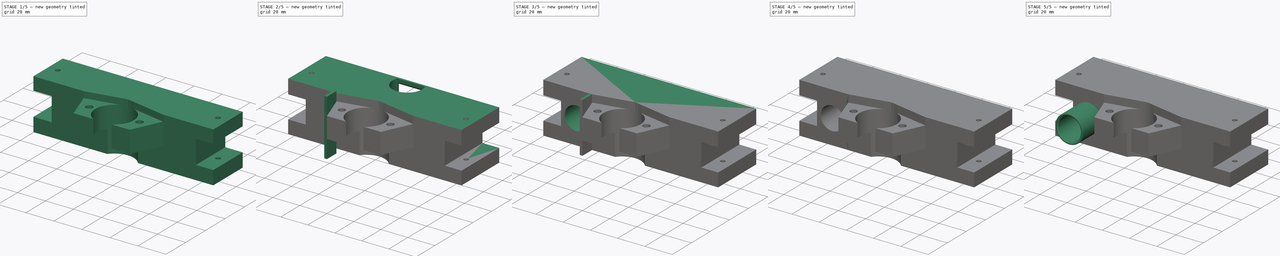
[diagram: build sequence overview — one tinted view per stage of 5, left to right]
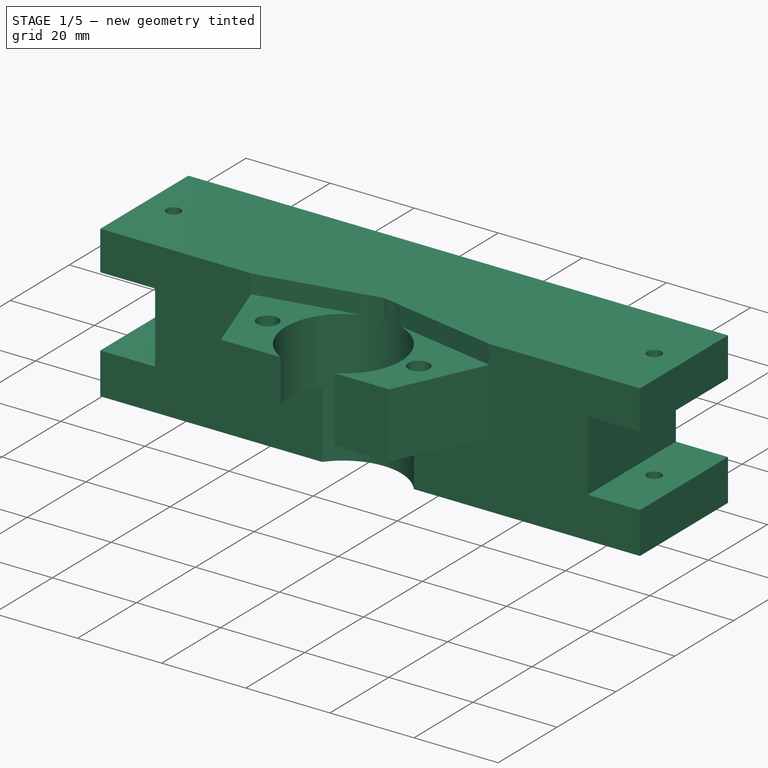
[diagram: stage 1 of 5 — iso view after this stage's code; geometry added in this stage tinted green]
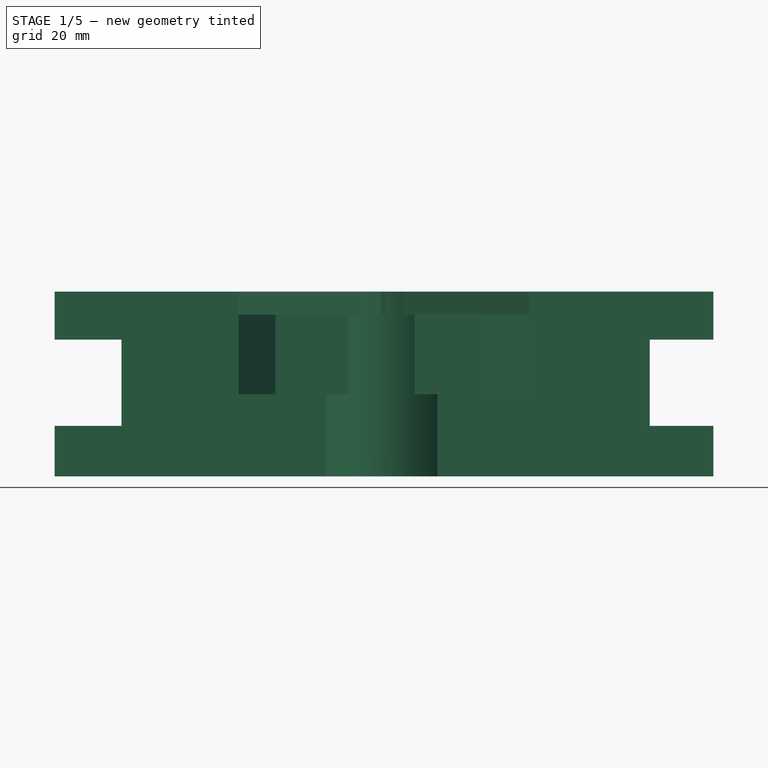
[diagram: stage 1 of 5 — front view after this stage's code; geometry added in this stage tinted green]
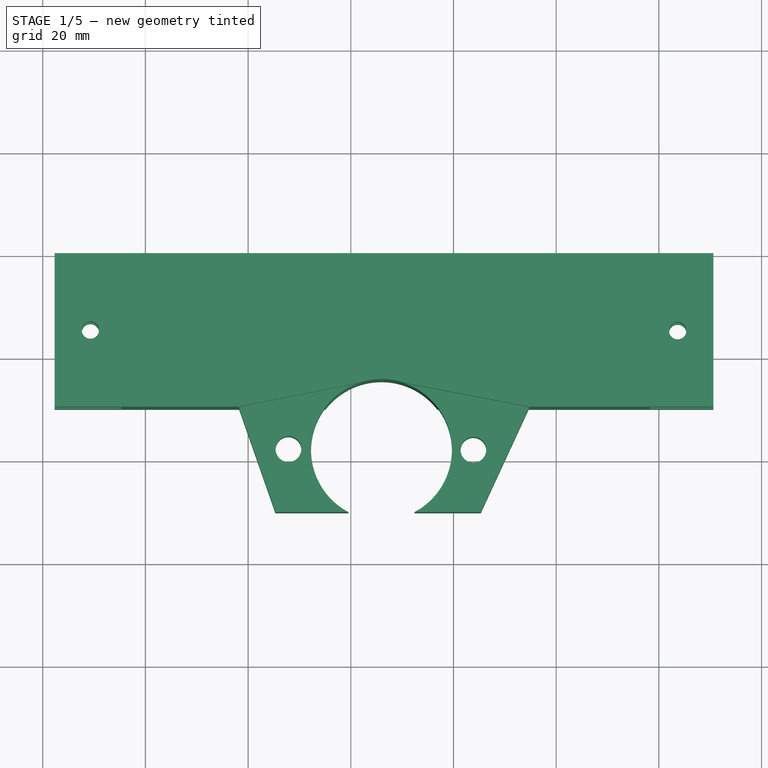
[diagram: stage 1 of 5 — top view after this stage's code; geometry added in this stage tinted green]
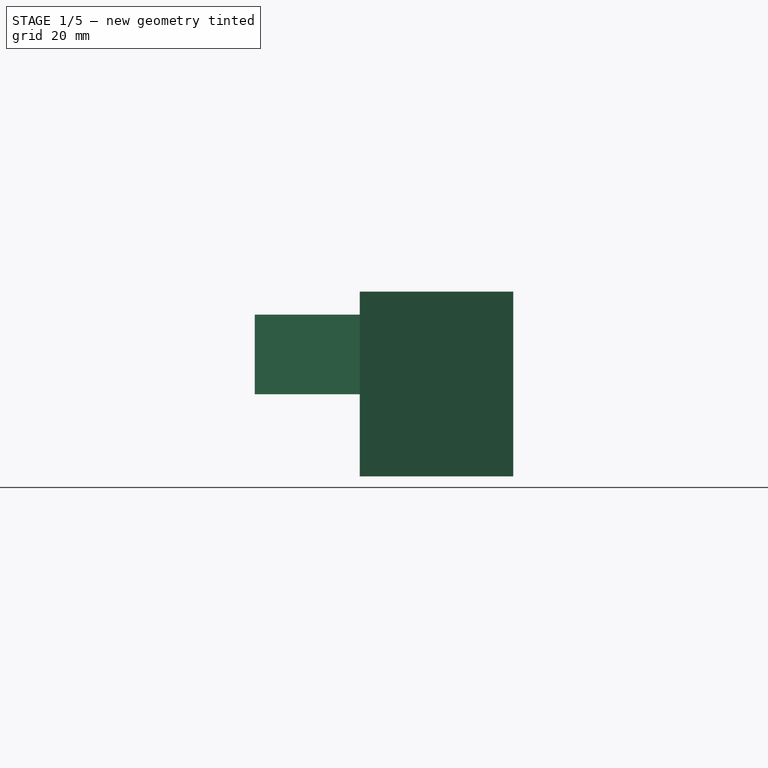
[diagram: stage 1 of 5 — right view after this stage's code; geometry added in this stage tinted green]
FCSTD DOCUMENT  (FreeCAD 2024.2R37179 (Git))
Label: Rear_upper_central_brace
License: All rights reserved
LicenseURL: http://en.wikipedia.org/wiki/All_rights_reserved
objects: PartDesign::Pocket×28, Sketcher::SketchObject×18, PartDesign::Pad×18, PartDesign::Chamfer×3, PartDesign::Fillet×1, PartDesign::Body×1
note: 119 computed .brp shape members not serialized (recipe doc carries the construction recipe); baked Part::Feature solids carry a one-line shape summary decoded from their .brp

FEATURE [Sketcher::SketchObject] Sketch
  AttachmentSupport = -> [XZ_Plane]
  FullyConstrained = false
  MapMode = 5
  Placement = pos=(0,0,0) rot=(1,0,0;1.5708rad)
  sketch-geometry (12):
    g0: LineSegment StartX=442.317 StartY=170.67 StartZ=0 EndX=570.617 EndY=170.67 EndZ=0
    g1: LineSegment StartX=570.617 StartY=170.67 StartZ=0 EndX=570.617 EndY=161.32 EndZ=0
    g2: LineSegment StartX=442.317 StartY=161.32 StartZ=0 EndX=442.317 EndY=170.67 EndZ=0
    g3: LineSegment StartX=455.34 StartY=161.32 StartZ=0 EndX=455.34 EndY=144.52 EndZ=0
    g4: LineSegment StartX=558.235 StartY=161.32 StartZ=0 EndX=558.235 EndY=144.52 EndZ=0
    g5: LineSegment StartX=570.617 StartY=161.32 StartZ=0 EndX=558.235 EndY=161.32 EndZ=0
    g6: LineSegment StartX=455.34 StartY=161.32 StartZ=0 EndX=442.317 EndY=161.32 EndZ=0
    g7: LineSegment StartX=558.235 StartY=144.52 StartZ=0 EndX=570.617 EndY=144.52 EndZ=0
    g8: LineSegment StartX=570.617 StartY=144.52 StartZ=0 EndX=570.617 EndY=134.67 EndZ=0
    g9: LineSegment StartX=570.617 StartY=134.67 StartZ=0 EndX=442.317 EndY=134.67 EndZ=0
    g10: LineSegment StartX=442.317 StartY=134.67 StartZ=0 EndX=442.317 EndY=144.52 EndZ=0
    g11: LineSegment StartX=442.317 StartY=144.52 StartZ=0 EndX=455.34 EndY=144.52 EndZ=0
  constraints (24):
    c: Coincident(g0,g1)
    c: Coincident(g2,g0)
    c: Horizontal(g0)
    c: Vertical(g1)
    c: Vertical(g2)
    c: Vertical(g3)
    c: Vertical(g4)
    c: Coincident(g5,g1)
    c: Coincident(g5,g4)
    c: Horizontal(g5)
    c: Coincident(g6,g3)
    c: Coincident(g6,g2)
    c: Horizontal(g6)
    c: Coincident(g7,g4)
    c: Horizontal(g7)
    c: Coincident(g8,g7)
    c: Vertical(g8)
    c: Coincident(g9,g8)
    c: Horizontal(g9)
    c: Coincident(g10,g9)
    c: Vertical(g10)
    c: Coincident(g11,g10)
    c: Coincident(g11,g3)
    c: Horizontal(g11)
FEATURE [PartDesign::Pad] Pad
  Direction = (0,-1,2e-16)
  Length = 29.89
  Length2 = 10
  Placement = pos=(0,0,0) rot=(1,0,0;1.5708rad)
  Profile = -> Sketch
  ReferenceAxis = -> Sketch [N_Axis]
  Suppressed = false
  Type = 0
FEATURE [Sketcher::SketchObject] Sketch001
  AttachmentSupport = -> [Pad]
  FullyConstrained = false
  MapMode = 5
  Placement = pos=(0,1.13e-13,170.67) rot=(0,0,1;3.14159rad)
  sketch-geometry (5):
    g0: Circle CenterX=-505.885 CenterY=38.2233 CenterZ=0 NormalX=0 NormalY=0 NormalZ=1 AngleXU=0 Radius=13.6635
    g1: Circle CenterX=-449.285 CenterY=14.9726 CenterZ=0 NormalX=0 NormalY=0 NormalZ=1 AngleXU=0 Radius=1.69029
    g2: Circle CenterX=-563.662 CenterY=15.0865 CenterZ=0 NormalX=0 NormalY=0 NormalZ=1 AngleXU=0 Radius=1.69361
    g3: Circle CenterX=-487.857 CenterY=38.0946 CenterZ=0 NormalX=0 NormalY=0 NormalZ=1 AngleXU=0 Radius=2.49617
    g4: Circle CenterX=-523.874 CenterY=38.2309 CenterZ=0 NormalX=0 NormalY=0 NormalZ=1 AngleXU=0 Radius=2.50068
FEATURE [PartDesign::Pocket] Pocket
  BaseFeature = -> Pad
  Direction = (0,-2e-16,-1)
  Length = 5
  Length2 = 5
  Placement = pos=(0,0,0) rot=(1,0,0;1.5708rad)
  Profile = -> Sketch001
  ReferenceAxis = -> Sketch001 [N_Axis]
  Suppressed = false
  Type = 1
FEATURE [Sketcher::SketchObject] Sketch002
  AttachmentSupport = -> [Pocket]
  FullyConstrained = false
  MapMode = 5
  Placement = pos=(0,-29.89,1.32e-14) rot=(1,0,0;1.5708rad)
  sketch-geometry (4):
    g0: LineSegment StartX=478.163 StartY=166.171 StartZ=0 EndX=534.767 EndY=166.171 EndZ=0
    g1: LineSegment StartX=534.767 StartY=166.171 StartZ=0 EndX=534.767 EndY=150.67 EndZ=0
    g2: LineSegment StartX=534.767 StartY=150.67 StartZ=0 EndX=478.163 EndY=150.67 EndZ=0
    g3: LineSegment StartX=478.163 StartY=150.67 StartZ=0 EndX=478.163 EndY=166.171 EndZ=0
  constraints (8):
    c: Coincident(g0,g1)
    c: Coincident(g1,g2)
    c: Coincident(g2,g3)
    c: Coincident(g3,g0)
    c: Horizontal(g0)
    c: Horizontal(g2)
    c: Vertical(g1)
    c: Vertical(g3)
FEATURE [PartDesign::Pad] Pad001
  BaseFeature = -> Pocket
  Direction = (0,-1,2e-16)
  Length = 23
  Length2 = 10
  Placement = pos=(0,0,0) rot=(1,0,0;1.5708rad)
  Profile = -> Sketch002
  ReferenceAxis = -> Sketch002 [N_Axis]
  Suppressed = false
  Type = 0
FEATURE [Sketcher::SketchObject] Sketch003
  AttachmentSupport = -> [Pad001]
  FullyConstrained = false
  MapMode = 5
  Placement = pos=(0,1.13e-13,170.67) rot=(0,0,1;3.14159rad)
  sketch-geometry (8):
    g0: LineSegment StartX=-534.768 StartY=29.8908 StartZ=0 EndX=-525.312 EndY=50.3505 EndZ=0
    g1: LineSegment StartX=-525.312 StartY=50.3505 StartZ=0 EndX=-512.236 EndY=50.3505 EndZ=0
    g2: LineSegment StartX=-499.457 StartY=50.3505 StartZ=0 EndX=-485.325 EndY=50.3505 EndZ=0
    g3: LineSegment StartX=-485.325 StartY=50.3505 StartZ=0 EndX=-478.151 EndY=29.859 EndZ=0
    g4: LineSegment StartX=-478.151 StartY=29.859 StartZ=0 EndX=-462.114 EndY=62.2343 EndZ=0
    g5: LineSegment StartX=-462.114 StartY=62.2343 StartZ=0 EndX=-547.049 EndY=62.2343 EndZ=0
    g6: LineSegment StartX=-547.049 StartY=62.2343 StartZ=0 EndX=-534.768 EndY=29.8908 EndZ=0
    g7: LineSegment StartX=-512.236 StartY=50.3505 StartZ=0 EndX=-499.457 EndY=50.3505 EndZ=0
  constraints (12):
    c: Coincident(g1,g0)
    c: Horizontal(g1)
    c: Horizontal(g2)
    c: Coincident(g3,g2)
    c: Coincident(g4,g3)
    c: Coincident(g5,g4)
    c: Horizontal(g5)
    c: Coincident(g6,g5)
    c: Coincident(g6,g0)
    c: Coincident(g7,g1)
    c: Coincident(g7,g2)
    c: Horizontal(g7)
FEATURE [PartDesign::Pocket] Pocket001
  BaseFeature = -> Pad001
  Direction = (0,-2e-16,-1)
  Length = 5
  Length2 = 5
  Placement = pos=(0,0,0) rot=(1,0,0;1.5708rad)
  Profile = -> Sketch003
  ReferenceAxis = -> Sketch003 [N_Axis]
  Suppressed = false
  Type = 1
FEATURE [Sketcher::SketchObject] Sketch004
  AttachmentSupport = -> [XY_Plane]
  FullyConstrained = false
  MapMode = 5
  sketch-geometry (1):
    g0: Circle CenterX=505.971 CenterY=-38.2404 CenterZ=0 NormalX=0 NormalY=0 NormalZ=1 AngleXU=0 Radius=13.7188
FEATURE [PartDesign::Pocket] Pocket002
  BaseFeature = -> Pocket001
  Direction = (0,0,-1)
  Length = 5
  Length2 = 5
  Placement = pos=(0,0,0) rot=(1,0,0;1.5708rad)
  Profile = -> Sketch004
  ReferenceAxis = -> Sketch004 [N_Axis]
  Reversed = true
  Suppressed = false
  Type = 1
FEATURE [Sketcher::SketchObject] Sketch005
  AttachmentSupport = -> [XY_Plane]
  FullyConstrained = false
  MapMode = 5
  sketch-geometry (2):
    g0: Circle CenterX=523.879 CenterY=-38.2275 CenterZ=0 NormalX=0 NormalY=0 NormalZ=1 AngleXU=0 Radius=2.49339
    g1: Circle CenterX=487.856 CenterY=-38.0924 CenterZ=0 NormalX=0 NormalY=0 NormalZ=1 AngleXU=0 Radius=2.49987
FEATURE [PartDesign::Pocket] Pocket003
  BaseFeature = -> Pocket002
  Direction = (0,0,-1)
  Length = 5
  Length2 = 5
  Placement = pos=(0,0,0) rot=(1,0,0;1.5708rad)
  Profile = -> Sketch005
  ReferenceAxis = -> Sketch005 [N_Axis]
  Reversed = true
  Suppressed = false
  Type = 1
FEATURE [Sketcher::SketchObject] Sketch006
  AttachmentSupport = -> [Pocket003]
  FullyConstrained = false
  MapMode = 5
  Placement = pos=(0,8.92e-14,134.67) rot=(1,0,0;3.14159rad)
  sketch-geometry (14):
    g0: LineSegment StartX=448.321 StartY=18.1884 StartZ=0 EndX=446 EndY=15.7553 EndZ=0
    g1: LineSegment StartX=446 StartY=15.7553 StartZ=0 EndX=446.946 EndY=12.5284 EndZ=0
    g2: LineSegment StartX=446.946 StartY=12.5284 StartZ=0 EndX=450.214 EndY=11.7344 EndZ=0
    g3: LineSegment StartX=450.214 StartY=11.7344 StartZ=0 EndX=452.535 EndY=14.1675 EndZ=0
    g4: LineSegment StartX=452.535 StartY=14.1675 StartZ=0 EndX=451.589 EndY=17.3945 EndZ=0
    g5: LineSegment StartX=451.589 StartY=17.3945 StartZ=0 EndX=448.321 EndY=18.1884 EndZ=0
    g6: Circle CenterX=449.267 CenterY=14.9614 CenterZ=0 NormalX=0 NormalY=0 NormalZ=1 AngleXU=0 Radius=3.36288
    g7: LineSegment StartX=562.545 StartY=18.2692 StartZ=0 EndX=560.363 EndY=15.7194 EndZ=0
    g8: LineSegment StartX=560.363 StartY=15.7194 StartZ=0 EndX=561.48 EndY=12.5544 EndZ=0
    g9: LineSegment StartX=561.48 StartY=12.5544 StartZ=0 EndX=564.779 EndY=11.9393 EndZ=0
    g10: LineSegment StartX=564.779 StartY=11.9393 StartZ=0 EndX=566.962 EndY=14.4891 EndZ=0
    g11: LineSegment StartX=566.962 StartY=14.4891 StartZ=0 EndX=565.845 EndY=17.6541 EndZ=0
    g12: LineSegment StartX=565.845 StartY=17.6541 StartZ=0 EndX=562.545 EndY=18.2692 EndZ=0
    g13: Circle CenterX=563.662 CenterY=15.1043 CenterZ=0 NormalX=0 NormalY=0 NormalZ=1 AngleXU=0 Radius=3.35625
  constraints (26):
    c: Coincident(g0,g1)
    c: Coincident(g1,g2)
    c: Coincident(g2,g3)
    c: Coincident(g3,g4)
    c: Coincident(g4,g5)
    c: Coincident(g5,g0)
    c: Equal(g0, g1-g5) x5
    c: PointOnObject(g0,g6)
    c: PointOnObject(g1,g6)
    c: PointOnObject(g2,g6)
    c: PointOnObject(g3,g6)
    c: PointOnObject(g4,g6)
    c: PointOnObject(g5,g6)
    c: Coincident(g7,g8)
    c: Coincident(g8,g9)
    c: Coincident(g9,g10)
    c: Coincident(g10,g11)
    c: Coincident(g11,g12)
    c: Coincident(g12,g7)
    c: Equal(g7, g8-g12) x5
    c: PointOnObject(g7,g13)
    c: PointOnObject(g8,g13)
    c: PointOnObject(g9,g13)
    c: PointOnObject(g10,g13)
    c: PointOnObject(g11,g13)
    c: PointOnObject(g12,g13)
FEATURE [PartDesign::Pocket] Pocket004
  BaseFeature = -> Pocket003
  Direction = (0,2e-16,1)
  Length = 3.3
  Length2 = 5
  Placement = pos=(0,0,0) rot=(1,0,0;1.5708rad)
  Profile = -> Sketch006
  ReferenceAxis = -> Sketch006 [N_Axis]
  Suppressed = false
  Type = 0
FEATURE [Sketcher::SketchObject] Sketch007
  AttachmentSupport = -> [Pocket004]
  FullyConstrained = false
  MapMode = 5
  Placement = pos=(0,9.98e-14,150.67) rot=(1,0,0;3.14159rad)
  sketch-geometry (14):
    g0: LineSegment StartX=487.917 StartY=42.8695 StartZ=0 EndX=483.715 EndY=40.4973 EndZ=0
    g1: LineSegment StartX=483.715 StartY=40.4973 StartZ=0 EndX=483.669 EndY=35.6724 EndZ=0
    g2: LineSegment StartX=483.669 StartY=35.6724 StartZ=0 EndX=487.824 EndY=33.2196 EndZ=0
    g3: LineSegment StartX=487.824 StartY=33.2196 StartZ=0 EndX=492.026 EndY=35.5918 EndZ=0
    g4: LineSegment StartX=492.026 StartY=35.5918 StartZ=0 EndX=492.072 EndY=40.4167 EndZ=0
    g5: LineSegment StartX=492.072 StartY=40.4167 StartZ=0 EndX=487.917 EndY=42.8695 EndZ=0
    g6: Circle CenterX=487.871 CenterY=38.0446 CenterZ=0 NormalX=0 NormalY=0 NormalZ=1 AngleXU=0 Radius=4.82518
    g7: LineSegment StartX=523.801 StartY=42.9111 StartZ=0 EndX=519.745 EndY=40.5243 EndZ=0
    g8: LineSegment StartX=519.745 StartY=40.5243 StartZ=0 EndX=519.784 EndY=35.8182 EndZ=0
    g9: LineSegment StartX=519.784 StartY=35.8182 StartZ=0 EndX=523.879 EndY=33.4987 EndZ=0
    g10: LineSegment StartX=523.879 StartY=33.4987 StartZ=0 EndX=527.935 EndY=35.8854 EndZ=0
    g11: LineSegment StartX=527.935 StartY=35.8854 StartZ=0 EndX=527.896 EndY=40.5916 EndZ=0
    g12: LineSegment StartX=527.896 StartY=40.5916 StartZ=0 EndX=523.801 EndY=42.9111 EndZ=0
    g13: Circle CenterX=523.84 CenterY=38.2049 CenterZ=0 NormalX=0 NormalY=0 NormalZ=1 AngleXU=0 Radius=4.70635
  constraints (26):
    c: Coincident(g0,g1)
    c: Coincident(g1,g2)
    c: Coincident(g2,g3)
    c: Coincident(g3,g4)
    c: Coincident(g4,g5)
    c: Coincident(g5,g0)
    c: Equal(g0, g1-g5) x5
    c: PointOnObject(g0,g6)
    c: PointOnObject(g1,g6)
    c: PointOnObject(g2,g6)
    c: PointOnObject(g3,g6)
    c: PointOnObject(g4,g6)
    c: PointOnObject(g5,g6)
    c: Coincident(g7,g8)
    c: Coincident(g8,g9)
    c: Coincident(g9,g10)
    c: Coincident(g10,g11)
    c: Coincident(g11,g12)
    c: Coincident(g12,g7)
    c: Equal(g7, g8-g12) x5
    c: PointOnObject(g7,g13)
    c: PointOnObject(g8,g13)
    c: PointOnObject(g9,g13)
    c: PointOnObject(g10,g13)
    c: PointOnObject(g11,g13)
    c: PointOnObject(g12,g13)
FEATURE [PartDesign::Pocket] Pocket005
  BaseFeature = -> Pocket004
  Direction = (0,2e-16,1)
  Length = 3.3
  Length2 = 5
  Placement = pos=(0,0,0) rot=(1,0,0;1.5708rad)
  Profile = -> Sketch007
  ReferenceAxis = -> Sketch007 [N_Axis]
  Suppressed = false
  Type = 0
FEATURE [Sketcher::SketchObject] Sketch008
  AttachmentSupport = -> [Pocket005]
  FullyConstrained = false
  MapMode = 5
  Placement = pos=(0,8.92e-14,134.67) rot=(1,0,0;3.14159rad)
  sketch-geometry (1):
    g0: Circle CenterX=505.228 CenterY=9.21818 CenterZ=0 NormalX=0 NormalY=0 NormalZ=1 AngleXU=0 Radius=6.09179
FEATURE [PartDesign::Pocket] Pocket006
  BaseFeature = -> Pocket005
  Direction = (0,2e-16,1)
  Length = 26.08
  Length2 = 5
  Placement = pos=(0,0,0) rot=(1,0,0;1.5708rad)
  Profile = -> Sketch008
  ReferenceAxis = -> Sketch008 [N_Axis]
  Suppressed = false
  Type = 0
FEATURE [Sketcher::SketchObject] Sketch009
  AttachmentSupport = -> [Pocket006]
  FullyConstrained = false
  MapMode = 5
  Placement = pos=(0,1.13e-13,170.67) rot=(0,0,1;3.14159rad)
  sketch-geometry (3):
    g0: LineSegment StartX=-478.15 StartY=29.8926 StartZ=0 EndX=-505.862 EndY=24.3773 EndZ=0
    g1: LineSegment StartX=-505.862 StartY=24.3773 StartZ=0 EndX=-534.777 EndY=29.8926 EndZ=0
    g2: LineSegment StartX=-534.777 StartY=29.8926 StartZ=0 EndX=-478.15 EndY=29.8926 EndZ=0
  constraints (4):
    c: Coincident(g1,g0)
    c: Coincident(g2,g1)
    c: Coincident(g2,g0)
    c: Horizontal(g2)
FEATURE [PartDesign::Pocket] Pocket007
  BaseFeature = -> Pocket006
  Direction = (0,-2e-16,-1)
  Length = 0
  Length2 = 5
  Placement = pos=(0,0,0) rot=(1,0,0;1.5708rad)
  Profile = -> Sketch009
  ReferenceAxis = -> Sketch009 [N_Axis]
  Suppressed = false
  Type = 3
  UpToFace = -> Pocket006 [Face39]
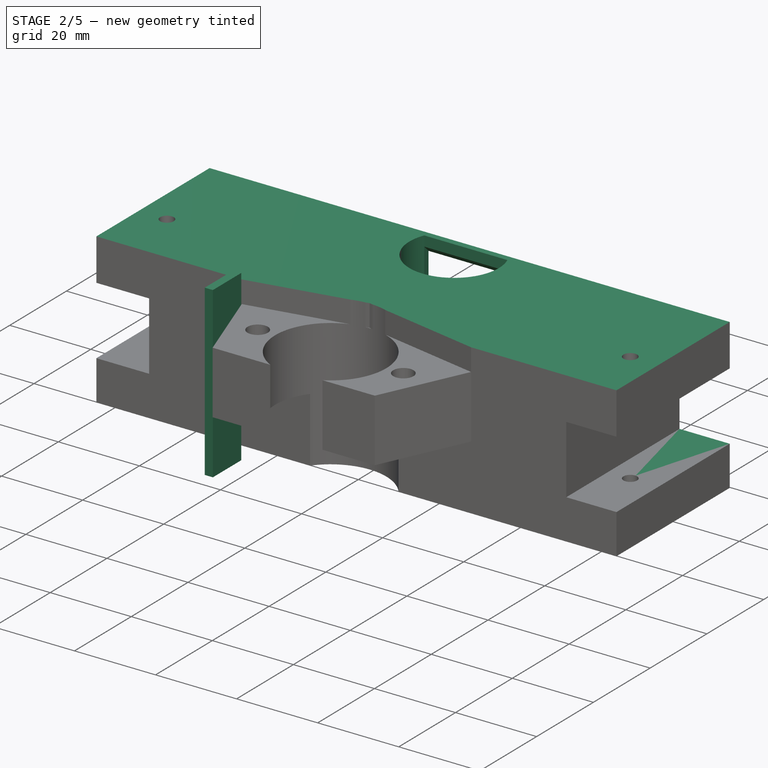
[diagram: stage 2 of 5 — iso view after this stage's code; geometry added in this stage tinted green]
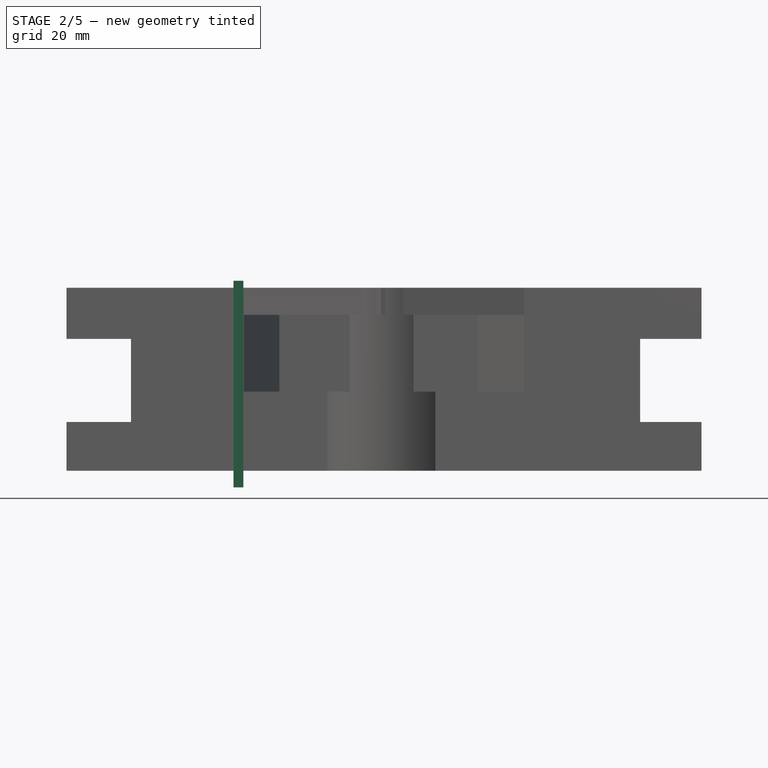
[diagram: stage 2 of 5 — front view after this stage's code; geometry added in this stage tinted green]
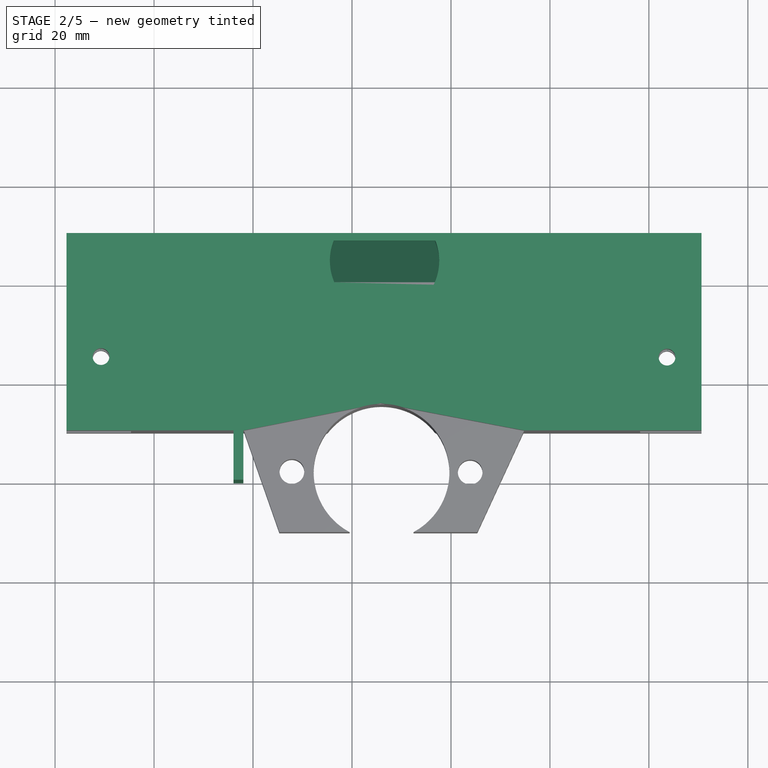
[diagram: stage 2 of 5 — top view after this stage's code; geometry added in this stage tinted green]
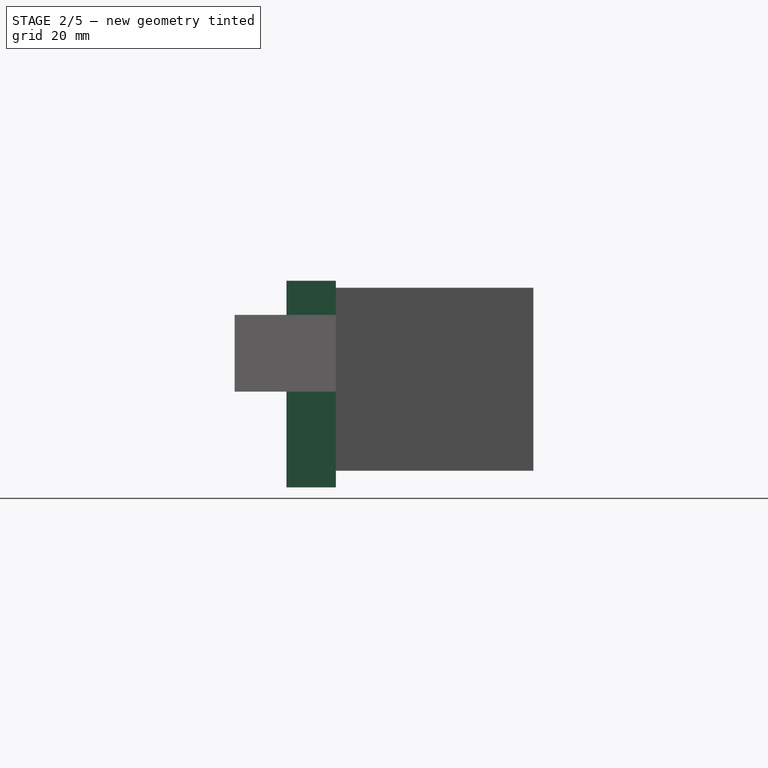
[diagram: stage 2 of 5 — right view after this stage's code; geometry added in this stage tinted green]
FEATURE [PartDesign::Pad] Pad002
  BaseFeature = -> Pocket007
  Direction = (0,1,-4e-16)
  Length = 10
  Length2 = 10
  Placement = pos=(0,0,0) rot=(1,0,0;1.5708rad)
  Profile = -> Pocket007 [Face3]
  Refine = true
  Suppressed = false
  Type = 0
FEATURE [Sketcher::SketchObject] Sketch010
  AttachmentOffset = pos=(0,45,0) rot=(0,0,1;0rad)
  AttachmentSupport = -> [Pad002]
  FullyConstrained = false
  MapMode = 5
  Placement = pos=(0,-45,170.67) rot=(0,0,1;3.14159rad)
  sketch-geometry (2):
    g0: ArcOfCircle CenterX=-506.579 CenterY=-49.3896 CenterZ=0 NormalX=0 NormalY=0 NormalZ=1 AngleXU=0 Radius=11.046 StartAngle=5.90291 EndAngle=9.80505
    g1: LineSegment StartX=-516.836 StartY=-53.4896 StartZ=0 EndX=-496.322 EndY=-53.4896 EndZ=0
  constraints (6):
    c: Coincident(g1,g0)
    c: Coincident(g1,g0)
    c: Horizontal(g1)
    c: DistanceX(g0) = -516.836
    c: DistanceY(g0) = -53.4896
    c: DistanceX(g0) = -496.322
FEATURE [PartDesign::Pocket] Pocket008
  BaseFeature = -> Pad002
  Direction = (0,-3.4e-15,-1)
  Length = 1
  Length2 = 5
  Placement = pos=(0,0,0) rot=(1,0,0;1.5708rad)
  Profile = -> Sketch010
  ReferenceAxis = -> Sketch010 [N_Axis]
  Refine = true
  Suppressed = false
  Type = 0
FEATURE [PartDesign::Pad] Pad003
  BaseFeature = -> Pocket008
  Direction = (0,3.5e-15,1)
  Length = 1
  Length2 = 10
  Placement = pos=(0,0,0) rot=(1,0,0;1.5708rad)
  Profile = -> Pocket008 [Face6]
  Suppressed = false
  Type = 0
FEATURE [PartDesign::Pocket] Pocket009
  BaseFeature = -> Pad003
  Direction = (0,-2.4e-15,-1)
  Length = 7
  Length2 = 5
  Placement = pos=(0,0,0) rot=(1,0,0;1.5708rad)
  Profile = -> Pad003 [Face94]
  Suppressed = false
  Type = 0
FEATURE [PartDesign::Pocket] Pocket010
  BaseFeature = -> Pocket009
  Direction = (0,1,-2.5e-15)
  Length = 5
  Length2 = 5
  Placement = pos=(0,0,0) rot=(1,0,0;1.5708rad)
  Profile = -> Pocket009 [Face95]
  Refine = true
  Suppressed = false
  Type = 0
FEATURE [PartDesign::Chamfer] Chamfer
  Angle = 45
  Base = -> Pocket010 [Edge200]
  BaseFeature = -> Pocket010
  ChamferType = 0
  FlipDirection = false
  Placement = pos=(0,0,0) rot=(1,0,0;1.5708rad)
  Refine = true
  Size = 9.8
  Size2 = 1
  SupportTransform = false
  Suppressed = false
  UseAllEdges = false
FEATURE [PartDesign::Pad] Pad004
  BaseFeature = -> Chamfer
  Direction = (0,-2.6e-15,-1)
  Length = 2
  Length2 = 10
  Placement = pos=(0,0,0) rot=(1,0,0;1.5708rad)
  Profile = -> Chamfer [Face4]
  Refine = true
  Suppressed = false
  Type = 0
FEATURE [PartDesign::Chamfer] Chamfer001
  Angle = 45
  Base = -> Pad004 [Edge89]
  BaseFeature = -> Pad004
  ChamferType = 0
  FlipDirection = false
  Placement = pos=(0,0,0) rot=(1,0,0;1.5708rad)
  Refine = true
  Size = 1.5
  Size2 = 1
  SupportTransform = false
  Suppressed = false
  UseAllEdges = false
FEATURE [Sketcher::SketchObject] Sketch011
  AttachmentSupport = -> [Chamfer001]
  FullyConstrained = false
  MapMode = 5
  Placement = pos=(0,10,-7.4e-15) rot=(-1,0,0;1.5708rad)
  sketch-geometry (14):
    g0: LineSegment StartX=474.86 StartY=-152.335 StartZ=0 EndX=473.168 EndY=-149.586 EndZ=0
    g1: LineSegment StartX=473.168 StartY=-149.586 StartZ=0 EndX=469.941 EndY=-149.677 EndZ=0
    g2: LineSegment StartX=469.941 StartY=-149.677 StartZ=0 EndX=468.407 EndY=-152.517 EndZ=0
    g3: LineSegment StartX=468.407 StartY=-152.517 StartZ=0 EndX=470.099 EndY=-155.266 EndZ=0
    g4: LineSegment StartX=470.099 StartY=-155.266 StartZ=0 EndX=473.326 EndY=-155.175 EndZ=0
    g5: LineSegment StartX=473.326 StartY=-155.175 StartZ=0 EndX=474.86 EndY=-152.335 EndZ=0
    g6: Circle CenterX=471.634 CenterY=-152.426 CenterZ=0 NormalX=0 NormalY=0 NormalZ=1 AngleXU=0 Radius=3.228
    g7: LineSegment StartX=545.508 StartY=-152.445 StartZ=0 EndX=543.911 EndY=-149.64 EndZ=0
    g8: LineSegment StartX=543.911 StartY=-149.64 StartZ=0 EndX=540.683 EndY=-149.62 EndZ=0
    g9: LineSegment StartX=540.683 StartY=-149.62 StartZ=0 EndX=539.052 EndY=-152.406 EndZ=0
    g10: LineSegment StartX=539.052 StartY=-152.406 StartZ=0 EndX=540.649 EndY=-155.211 EndZ=0
    g11: LineSegment StartX=540.649 StartY=-155.211 StartZ=0 EndX=543.877 EndY=-155.231 EndZ=0
    g12: LineSegment StartX=543.877 StartY=-155.231 StartZ=0 EndX=545.508 EndY=-152.445 EndZ=0
    g13: Circle CenterX=542.28 CenterY=-152.426 CenterZ=0 NormalX=0 NormalY=0 NormalZ=1 AngleXU=0 Radius=3.228
  constraints (30):
    c: Coincident(g0,g1)
    c: Coincident(g1,g2)
    c: Coincident(g2,g3)
    c: Coincident(g3,g4)
    c: Coincident(g4,g5)
    c: Coincident(g5,g0)
    c: Equal(g0, g1-g5) x5
    c: PointOnObject(g0,g6)
    c: PointOnObject(g1,g6)
    c: PointOnObject(g2,g6)
    c: PointOnObject(g3,g6)
    c: PointOnObject(g4,g6)
    c: PointOnObject(g5,g6)
    c: Radius(g6) = 3.228
    c: Coincident(g7,g8)
    c: Coincident(g8,g9)
    c: Coincident(g9,g10)
    c: Coincident(g10,g11)
    c: Coincident(g11,g12)
    c: Coincident(g12,g7)
    c: Equal(g7, g8-g12) x5
    c: PointOnObject(g7,g13)
    c: PointOnObject(g8,g13)
    c: PointOnObject(g9,g13)
    c: PointOnObject(g10,g13)
    c: PointOnObject(g11,g13)
    c: PointOnObject(g12,g13)
    c: Radius(g13) = 3.228
    c: DistanceX(g6,g13) = 70.646
    c: Horizontal(g13,g6)
FEATURE [PartDesign::Pocket] Pocket011
  BaseFeature = -> Chamfer001
  Direction = (0,-1,-2e-16)
  Length = 5
  Length2 = 5
  Placement = pos=(0,0,0) rot=(1,0,0;1.5708rad)
  Profile = -> Sketch011
  ReferenceAxis = -> Sketch011 [N_Axis]
  Refine = true
  Suppressed = false
  Type = 0
FEATURE [Sketcher::SketchObject] Sketch012
  AttachmentSupport = -> [Pocket011]
  FullyConstrained = false
  MapMode = 5
  Placement = pos=(0,-29.89,2.01e-14) rot=(1,0,0;1.5708rad)
  sketch-geometry (4):
    g0: LineSegment StartX=478.058 StartY=173.085 StartZ=0 EndX=476.058 EndY=173.085 EndZ=0
    g1: LineSegment StartX=476.058 StartY=173.085 StartZ=0 EndX=476.058 EndY=131.33 EndZ=0
    g2: LineSegment StartX=476.058 StartY=131.33 StartZ=0 EndX=478.058 EndY=131.33 EndZ=0
    g3: LineSegment StartX=478.058 StartY=131.33 StartZ=0 EndX=478.058 EndY=173.085 EndZ=0
  constraints (9):
    c: Coincident(g0,g1)
    c: Coincident(g1,g2)
    c: Coincident(g2,g3)
    c: Coincident(g3,g0)
    c: Horizontal(g0)
    c: Horizontal(g2)
    c: Vertical(g1)
    c: Vertical(g3)
    c: DistanceX(g0,g0) = 2
FEATURE [PartDesign::Pad] Pad005
  BaseFeature = -> Pocket011
  Direction = (0,-1,2e-16)
  Length = 10
  Length2 = 10
  Placement = pos=(0,0,0) rot=(1,0,0;1.5708rad)
  Profile = -> Sketch012
  ReferenceAxis = -> Sketch012 [N_Axis]
  Refine = true
  Suppressed = false
  Type = 0
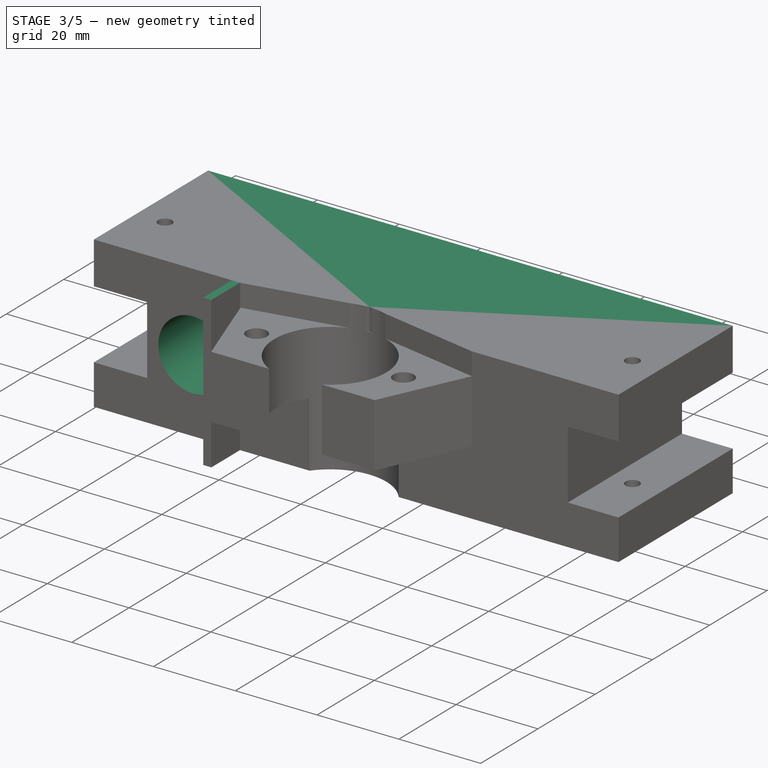
[diagram: stage 3 of 5 — iso view after this stage's code; geometry added in this stage tinted green]
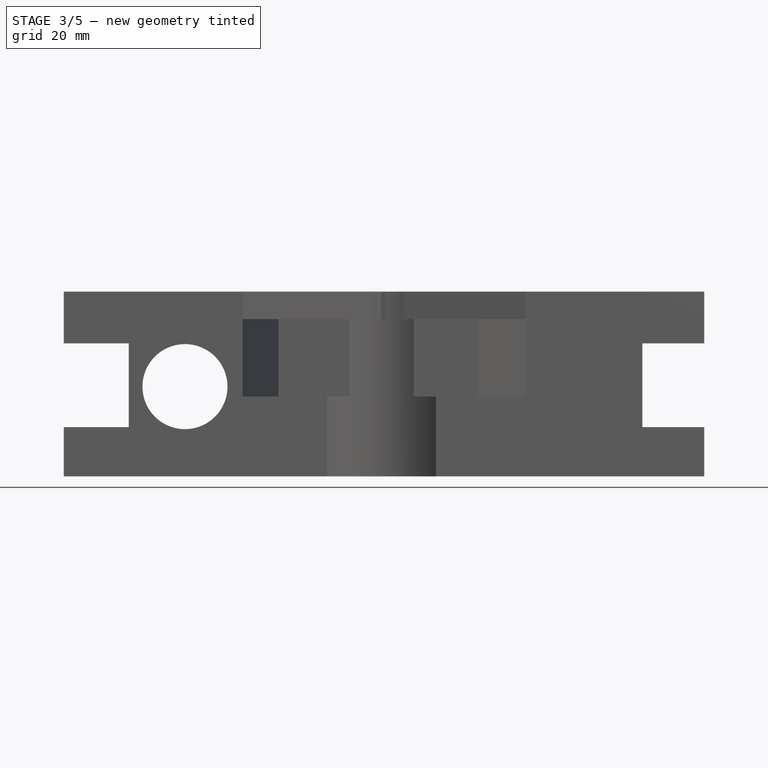
[diagram: stage 3 of 5 — front view after this stage's code; geometry added in this stage tinted green]
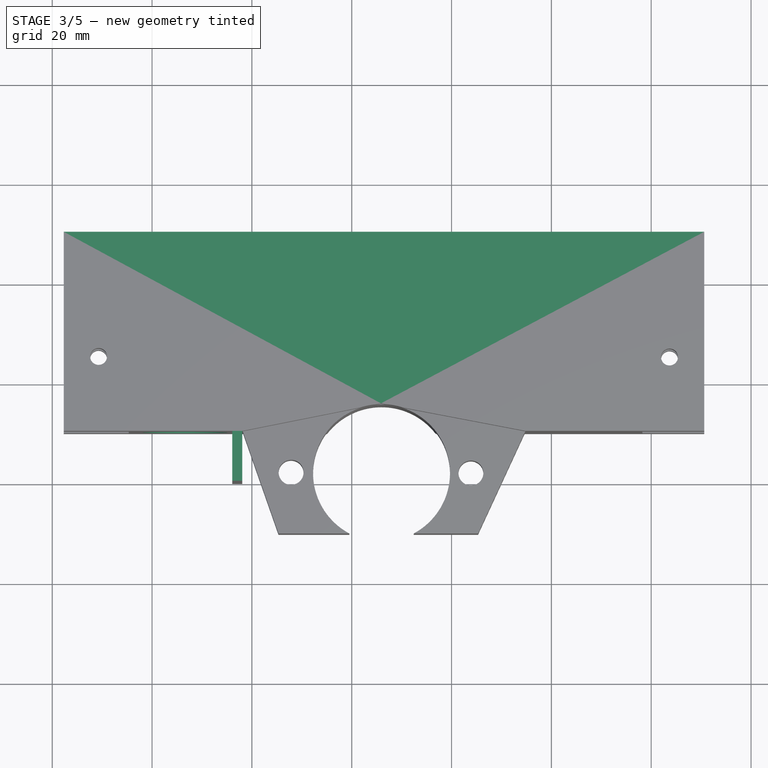
[diagram: stage 3 of 5 — top view after this stage's code; geometry added in this stage tinted green]
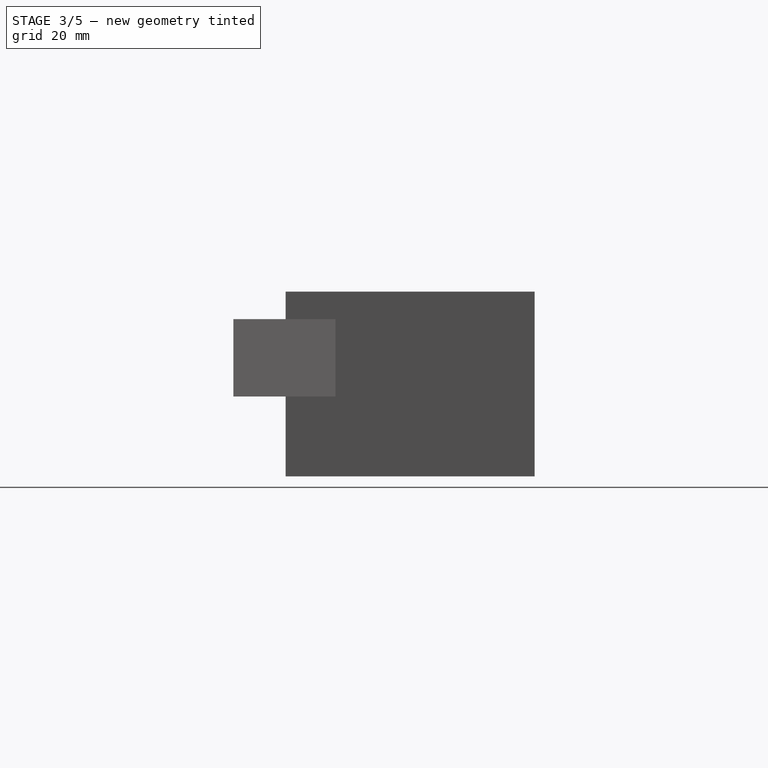
[diagram: stage 3 of 5 — right view after this stage's code; geometry added in this stage tinted green]
FEATURE [PartDesign::Pocket] Pocket012
  BaseFeature = -> Pad005
  Direction = (0,-1,4e-16)
  Length = 15
  Length2 = 5
  Placement = pos=(0,0,0) rot=(1,0,0;1.5708rad)
  Profile = -> Pad005 [Face50]
  Refine = true
  Suppressed = false
  Type = 0
FEATURE [PartDesign::Pocket] Pocket013
  BaseFeature = -> Pocket012
  Direction = (0,-1,5e-16)
  Length = 13
  Length2 = 5
  Placement = pos=(0,0,0) rot=(1,0,0;1.5708rad)
  Profile = -> Pocket012 [Face52]
  Refine = true
  Suppressed = false
  Type = 0
FEATURE [PartDesign::Pad] Pad006
  BaseFeature = -> Pocket013
  Direction = (0,-0.707107,-0.707107)
  Length = 7
  Length2 = 10
  Placement = pos=(0,0,0) rot=(1,0,0;1.5708rad)
  Profile = -> Pocket013 [Face94]
  Refine = true
  Suppressed = false
  Type = 3
  UpToFace = -> Pocket013 [Face59]
FEATURE [PartDesign::Pad] Pad007
  BaseFeature = -> Pad006
  Direction = (-1,0,0)
  Length = 22
  Length2 = 10
  Placement = pos=(0,0,0) rot=(1,0,0;1.5708rad)
  Profile = -> Pad006 [Face59]
  Refine = true
  Suppressed = false
  Type = 0
FEATURE [Sketcher::SketchObject] Sketch013
  AttachmentSupport = -> [Pad007]
  FullyConstrained = false
  MapMode = 5
  Placement = pos=(0,5.262e-13,171.67) rot=(0,0,1;3.14159rad)
  sketch-geometry (4):
    g0: LineSegment StartX=-522.936 StartY=-0.23393 StartZ=0 EndX=-522.936 EndY=-15.3094 EndZ=0
    g1: LineSegment StartX=-522.936 StartY=-15.3094 StartZ=0 EndX=-489.406 EndY=-15.3094 EndZ=0
    g2: LineSegment StartX=-489.406 StartY=-15.3094 StartZ=0 EndX=-489.406 EndY=-0.23393 EndZ=0
    g3: LineSegment StartX=-489.406 StartY=-0.23393 StartZ=0 EndX=-522.936 EndY=-0.23393 EndZ=0
  constraints (8):
    c: Coincident(g0,g1)
    c: Coincident(g1,g2)
    c: Coincident(g2,g3)
    c: Coincident(g3,g0)
    c: Vertical(g0)
    c: Vertical(g2)
    c: Horizontal(g1)
    c: Horizontal(g3)
FEATURE [PartDesign::Pad] Pad008
  BaseFeature = -> Pad007
  Direction = (0,3.1e-15,1)
  Length = 10
  Length2 = 10
  Placement = pos=(0,0,0) rot=(1,0,0;1.5708rad)
  Profile = -> Sketch013
  ReferenceAxis = -> Sketch013 [N_Axis]
  Refine = true
  Reversed = true
  Suppressed = false
  Type = 0
FEATURE [PartDesign::Pad] Pad009
  BaseFeature = -> Pad008
  Direction = (0,-1,3.2e-15)
  Length = 10
  Length2 = 10
  Placement = pos=(0,0,0) rot=(1,0,0;1.5708rad)
  Profile = -> Pad008 [Face97]
  Refine = true
  Suppressed = false
  Type = 0
FEATURE [PartDesign::Pocket] Pocket014
  BaseFeature = -> Pad009
  Direction = (0,4e-15,1)
  Length = 14
  Length2 = 5
  Placement = pos=(0,0,0) rot=(1,0,0;1.5708rad)
  Profile = -> Pad009 [Face53]
  Refine = true
  Suppressed = false
  Type = 0
FEATURE [Sketcher::SketchObject] Sketch014
  AttachmentSupport = -> [Pocket014]
  FullyConstrained = false
  MapMode = 5
  Placement = pos=(0,5.677e-13,171.67) rot=(0,0,1;3.14159rad)
  sketch-geometry (4):
    g0: LineSegment StartX=-523.05 StartY=-0.475748 StartZ=0 EndX=-523.05 EndY=-18.073 EndZ=0
    g1: LineSegment StartX=-523.05 StartY=-18.073 StartZ=0 EndX=-488.291 EndY=-18.073 EndZ=0
    g2: LineSegment StartX=-488.291 StartY=-18.073 StartZ=0 EndX=-488.291 EndY=-0.475748 EndZ=0
    g3: LineSegment StartX=-488.291 StartY=-0.475748 StartZ=0 EndX=-523.05 EndY=-0.475748 EndZ=0
  constraints (8):
    c: Coincident(g0,g1)
    c: Coincident(g1,g2)
    c: Coincident(g2,g3)
    c: Coincident(g3,g0)
    c: Vertical(g0)
    c: Vertical(g2)
    c: Horizontal(g1)
    c: Horizontal(g3)
FEATURE [PartDesign::Pad] Pad010
  BaseFeature = -> Pocket014
  Direction = (0,3.3e-15,1)
  Length = 62
  Length2 = 10
  Placement = pos=(0,0,0) rot=(1,0,0;1.5708rad)
  Profile = -> Sketch014
  ReferenceAxis = -> Sketch014 [N_Axis]
  Refine = true
  Reversed = true
  Suppressed = false
  Type = 0
FEATURE [PartDesign::Pocket] Pocket015
  BaseFeature = -> Pad010
  Direction = (1,0,0)
  Length = 39
  Length2 = 5
  Placement = pos=(0,0,0) rot=(1,0,0;1.5708rad)
  Profile = -> Pad010 [Face12]
  Refine = true
  Suppressed = false
  Type = 0
FEATURE [Sketcher::SketchObject] Sketch015
  AttachmentSupport = -> [Pocket015]
  FullyConstrained = false
  MapMode = 5
  Placement = pos=(2.03e-14,-29.89,5.66e-14) rot=(1,0,0;1.5708rad)
  sketch-geometry (1):
    g0: Circle CenterX=466.593 CenterY=152.644 CenterZ=0 NormalX=0 NormalY=0 NormalZ=1 AngleXU=0 Radius=8.51602
FEATURE [PartDesign::Pocket] Pocket016
  BaseFeature = -> Pocket015
  Direction = (0,1,-2.1e-15)
  Length = 131
  Length2 = 5
  Placement = pos=(0,0,0) rot=(1,0,0;1.5708rad)
  Profile = -> Sketch015
  ReferenceAxis = -> Sketch015 [N_Axis]
  Refine = true
  Suppressed = false
  Type = 0
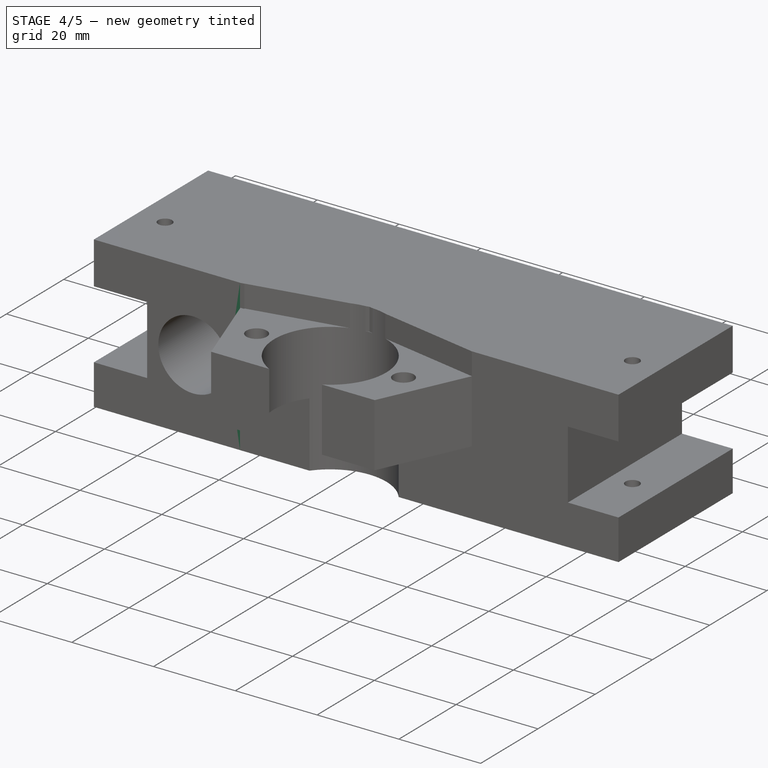
[diagram: stage 4 of 5 — iso view after this stage's code; geometry added in this stage tinted green]
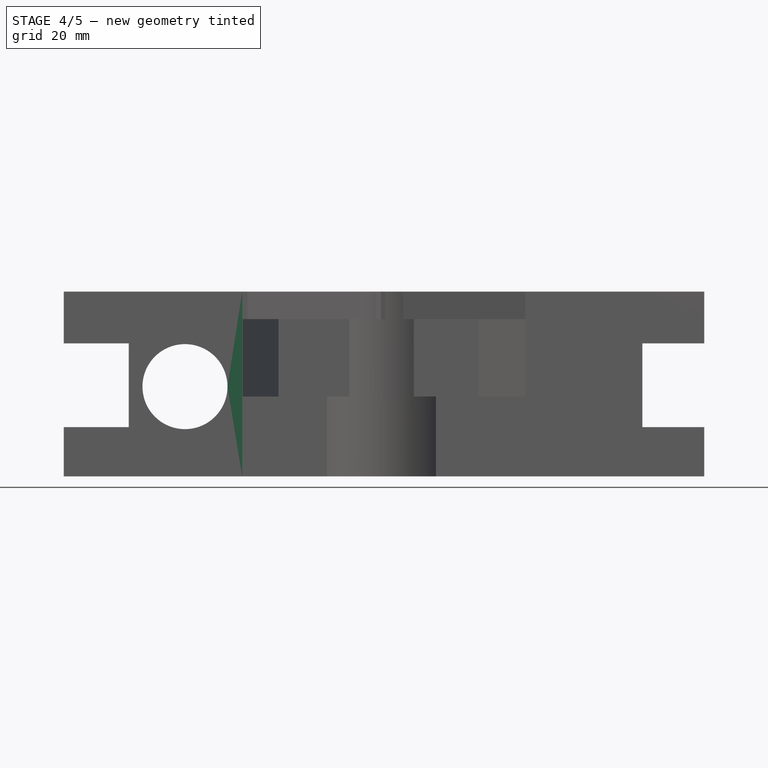
[diagram: stage 4 of 5 — front view after this stage's code; geometry added in this stage tinted green]
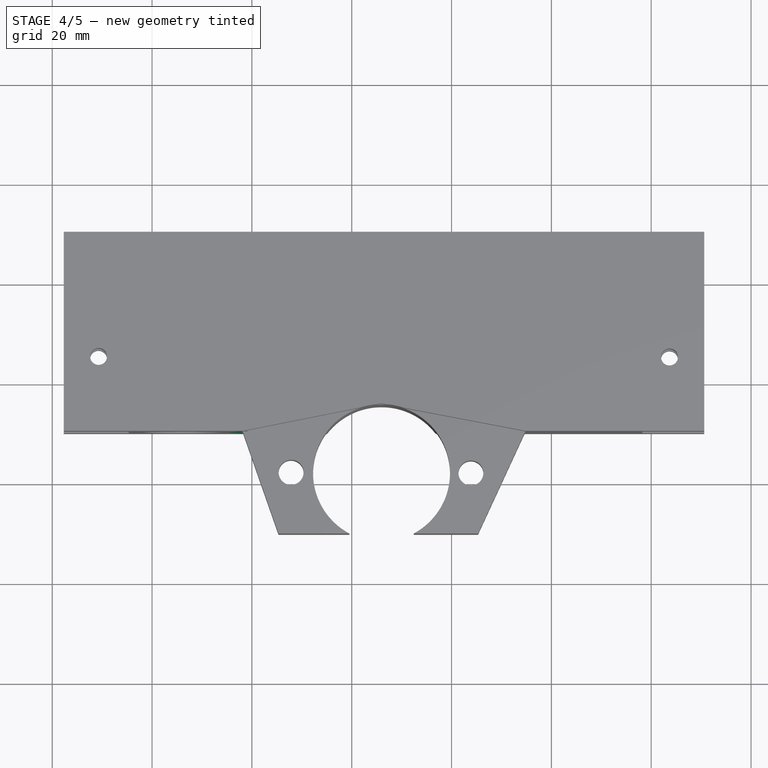
[diagram: stage 4 of 5 — top view after this stage's code; geometry added in this stage tinted green]
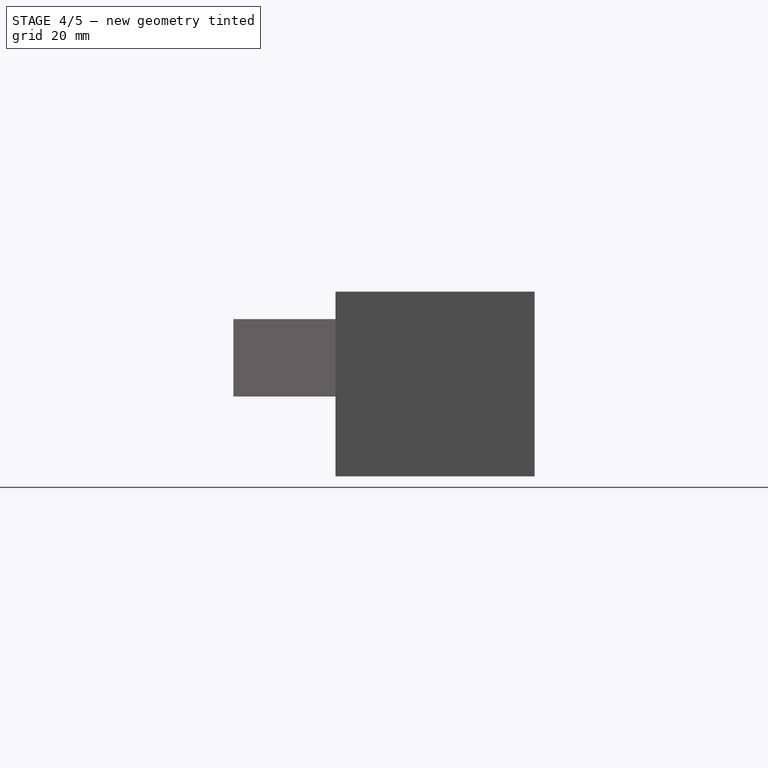
[diagram: stage 4 of 5 — right view after this stage's code; geometry added in this stage tinted green]
FEATURE [Sketcher::SketchObject] Sketch016
  AttachmentSupport = -> [Pocket016]
  FullyConstrained = false
  MapMode = 5
  Placement = pos=(0,10,-1.7e-14) rot=(-1,0,0;1.5708rad)
  sketch-geometry (4):
    g0: LineSegment StartX=459.963 StartY=-150.422 StartZ=0 EndX=450.561 EndY=-150.422 EndZ=0
    g1: LineSegment StartX=450.561 StartY=-150.422 StartZ=0 EndX=450.561 EndY=-155.969 EndZ=0
    g2: LineSegment StartX=450.561 StartY=-155.969 StartZ=0 EndX=459.963 EndY=-155.969 EndZ=0
    g3: LineSegment StartX=459.963 StartY=-155.969 StartZ=0 EndX=459.963 EndY=-150.422 EndZ=0
  constraints (8):
    c: Coincident(g0,g1)
    c: Coincident(g1,g2)
    c: Coincident(g2,g3)
    c: Coincident(g3,g0)
    c: Horizontal(g0)
    c: Horizontal(g2)
    c: Vertical(g1)
    c: Vertical(g3)
FEATURE [PartDesign::Pocket] Pocket017
  BaseFeature = -> Pocket016
  Direction = (0,-1,1.8e-15)
  Length = 5
  Length2 = 5
  Placement = pos=(0,0,0) rot=(1,0,0;1.5708rad)
  Profile = -> Sketch016
  ReferenceAxis = -> Sketch016 [N_Axis]
  Refine = true
  Suppressed = false
  Type = 0
FEATURE [PartDesign::Pocket] Pocket018
  BaseFeature = -> Pocket017
  Direction = (0,-1.9e-15,-1)
  Length = 1
  Length2 = 5
  Placement = pos=(0,0,0) rot=(1,0,0;1.5708rad)
  Profile = -> Pocket017 [Face55]
  Refine = true
  Suppressed = false
  Type = 0
FEATURE [PartDesign::Pocket] Pocket019
  BaseFeature = -> Pocket018
  Direction = (1,0,0)
  Length = 5
  Length2 = 5
  Placement = pos=(0,0,0) rot=(1,0,0;1.5708rad)
  Profile = -> Pocket018 [Face55]
  Refine = true
  Suppressed = false
  Type = 0
FEATURE [PartDesign::Pocket] Pocket020
  BaseFeature = -> Pocket019
  Direction = (0,2.1e-15,1)
  Length = 0.5
  Length2 = 5
  Placement = pos=(0,0,0) rot=(1,0,0;1.5708rad)
  Profile = -> Pocket019 [Face54]
  Refine = true
  Suppressed = false
  Type = 0
FEATURE [PartDesign::Pocket] Pocket021
  BaseFeature = -> Pocket020
  Direction = (1,0,0)
  Length = 5
  Length2 = 5
  Placement = pos=(0,0,0) rot=(1,0,0;1.5708rad)
  Profile = -> Pocket020 [Face55]
  Refine = true
  Suppressed = false
  Type = 0
FEATURE [PartDesign::Pocket] Pocket022
  BaseFeature = -> Pocket021
  Direction = (-6e-16,-1,2.4e-15)
  Length = 3
  Length2 = 5
  Placement = pos=(0,0,0) rot=(1,0,0;1.5708rad)
  Profile = -> Pocket021 [Face88]
  Refine = true
  Suppressed = false
  Type = 0
FEATURE [PartDesign::Pocket] Pocket023
  BaseFeature = -> Pocket022
  Direction = (0,1,-2.1e-15)
  Length = 0
  Length2 = 5
  Placement = pos=(0,0,0) rot=(1,0,0;1.5708rad)
  Profile = -> Pocket022 [Face17]
  Refine = true
  Suppressed = false
  Type = 3
  UpToFace = -> Pocket022 [Face19]
FEATURE [PartDesign::Pad] Pad011
  BaseFeature = -> Pocket023
  Direction = (7e-16,-1,2.8e-15)
  Length = 0.01
  Length2 = 10
  Placement = pos=(0,0,0) rot=(1,0,0;1.5708rad)
  Profile = -> Pocket023 [Face13]
  Refine = true
  Suppressed = false
  Type = 0
FEATURE [PartDesign::Pad] Pad012
  BaseFeature = -> Pad011
  Direction = (1,7e-16,0)
  Length = 1
  Length2 = 10
  Placement = pos=(0,0,0) rot=(1,0,0;1.5708rad)
  Profile = -> Pad011 [Face43]
  Refine = true
  Suppressed = false
  Type = 0
FEATURE [PartDesign::Pad] Pad013
  BaseFeature = -> Pad012
  Direction = (-7e-16,1,-3.3e-15)
  Length = 10
  Length2 = 10
  Placement = pos=(0,0,0) rot=(1,0,0;1.5708rad)
  Profile = -> Pad012 [Face87]
  Refine = true
  Suppressed = false
  Type = 0
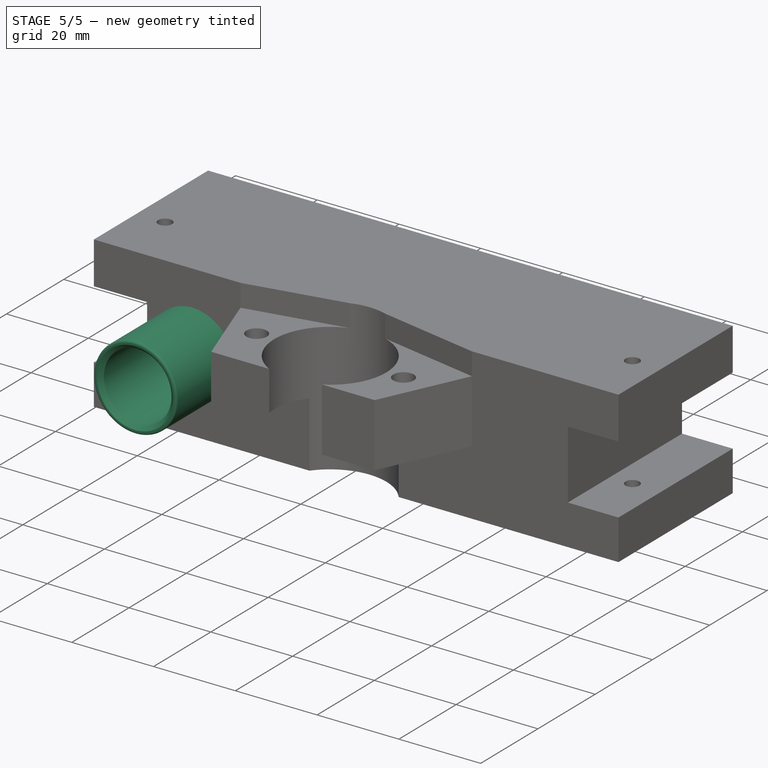
[diagram: stage 5 of 5 — iso view after this stage's code; geometry added in this stage tinted green]
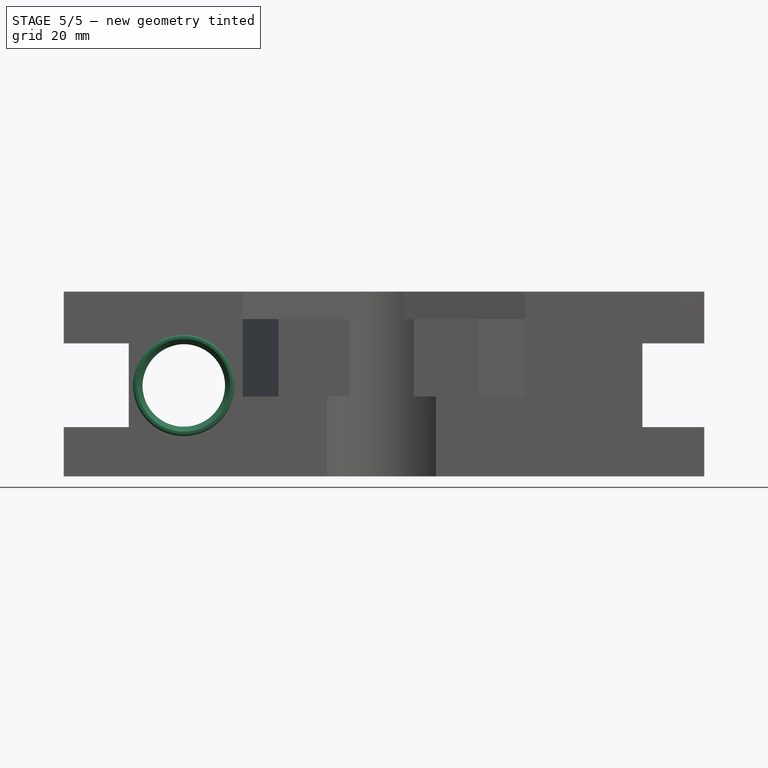
[diagram: stage 5 of 5 — front view after this stage's code; geometry added in this stage tinted green]
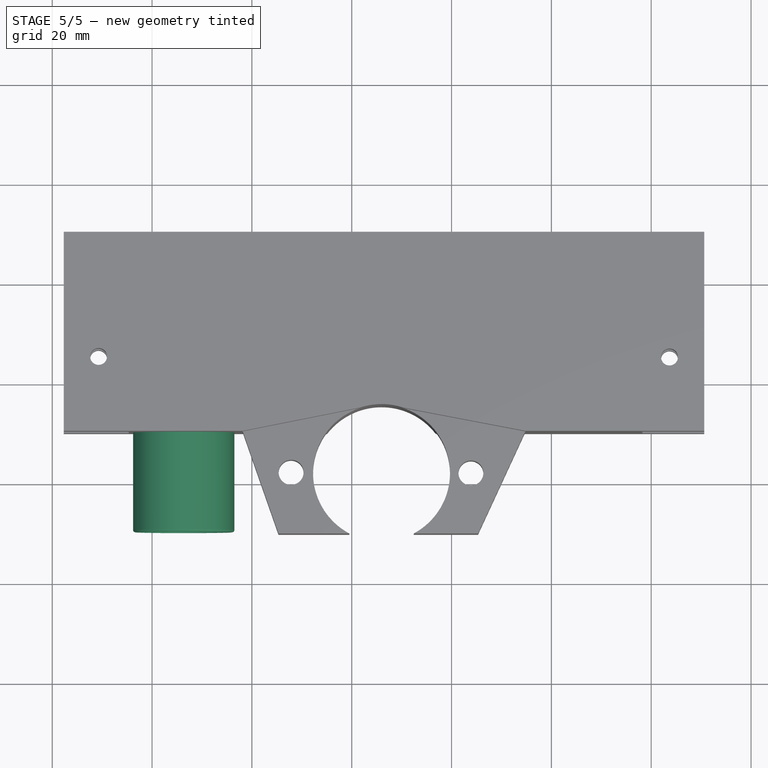
[diagram: stage 5 of 5 — top view after this stage's code; geometry added in this stage tinted green]
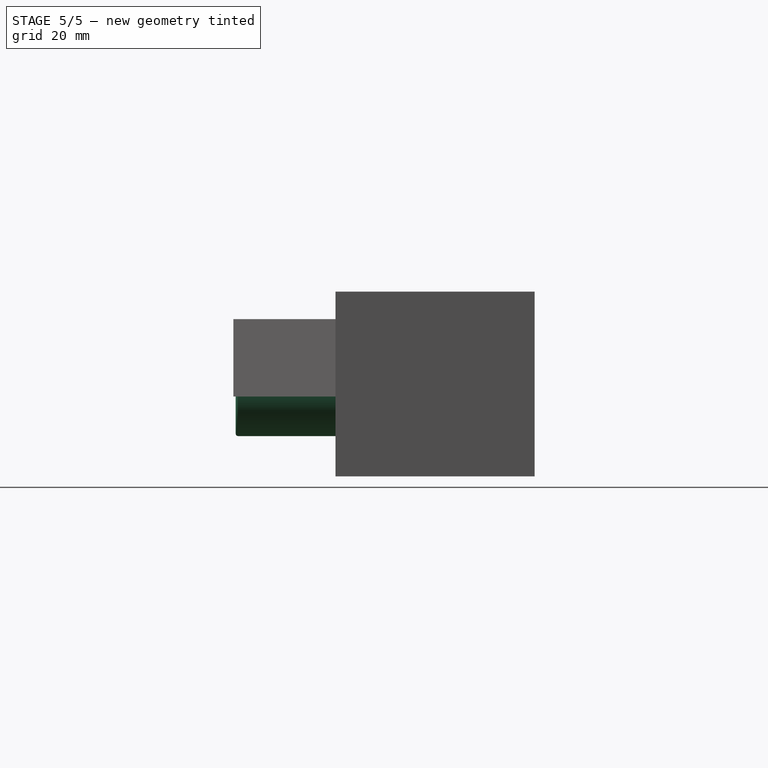
[diagram: stage 5 of 5 — right view after this stage's code; geometry added in this stage tinted green]
FEATURE [PartDesign::Pocket] Pocket024
  BaseFeature = -> Pad013
  Direction = (-8.61e-14,1,-3.2e-15)
  Length = 0
  Length2 = 5
  Placement = pos=(0,0,0) rot=(1,0,0;1.5708rad)
  Profile = -> Pad013 [Face19]
  Refine = true
  Suppressed = false
  Type = 3
  UpToFace = -> Pad013 [Face15]
FEATURE [PartDesign::Pad] Pad014
  BaseFeature = -> Pocket024
  Direction = (4e-16,-1,3.3e-15)
  Length = 10
  Length2 = 10
  Placement = pos=(0,0,0) rot=(1,0,0;1.5708rad)
  Profile = -> Pocket024 [Face13]
  Refine = true
  Suppressed = false
  Type = 0
FEATURE [PartDesign::Pocket] Pocket025
  BaseFeature = -> Pad014
  Direction = (-1,-4e-16,0)
  Length = 93
  Length2 = 5
  Placement = pos=(0,0,0) rot=(1,0,0;1.5708rad)
  Profile = -> Pad014 [Face46]
  Refine = true
  Suppressed = false
  Type = 0
FEATURE [PartDesign::Pad] Pad015
  BaseFeature = -> Pocket025
  Direction = (-0.187363,-0.982291,2e-15)
  Length = 10
  Length2 = 10
  Placement = pos=(0,0,0) rot=(1,0,0;1.5708rad)
  Profile = -> Pocket025 [Face31,Face32]
  Refine = true
  Suppressed = false
  Type = 0
FEATURE [PartDesign::Pocket] Pocket026
  BaseFeature = -> Pad015
  Direction = (0.982291,-0.187363,1.2e-15)
  Length = 5
  Length2 = 5
  Placement = pos=(0,0,0) rot=(1,0,0;1.5708rad)
  Profile = -> Pad015 [Face54]
  Refine = true
  Suppressed = false
  Type = 0
FEATURE [PartDesign::Pocket] Pocket027
  BaseFeature = -> Pocket026
  Direction = (0.187363,0.982291,-6.6e-15)
  Length = 0
  Length2 = 5
  Placement = pos=(0,0,0) rot=(1,0,0;1.5708rad)
  Profile = -> Pocket026 [Face52]
  Refine = true
  Suppressed = false
  Type = 3
  UpToFace = -> Pocket026 [Face27]
FEATURE [Sketcher::SketchObject] Sketch017
  AttachmentSupport = -> [Pocket027]
  FullyConstrained = false
  MapMode = 5
  Placement = pos=(2.21e-14,-29.89,1.465e-13) rot=(1,0,0;1.5708rad)
  sketch-geometry (2):
    g0: Circle CenterX=466.351 CenterY=152.882 CenterZ=0 NormalX=0 NormalY=0 NormalZ=1 AngleXU=0 Radius=8.26624
    g1: Circle CenterX=466.351 CenterY=152.882 CenterZ=0 NormalX=0 NormalY=0 NormalZ=1 AngleXU=0 Radius=10.1513
FEATURE [PartDesign::Pad] Pad016
  BaseFeature = -> Pocket027
  Direction = (0,-1,4.9e-15)
  Length = 10
  Length2 = 10
  Placement = pos=(0,0,0) rot=(1,0,0;1.5708rad)
  Profile = -> Sketch017
  ReferenceAxis = -> Sketch017 [N_Axis]
  Refine = true
  Suppressed = false
  Type = 0
FEATURE [PartDesign::Pad] Pad017
  BaseFeature = -> Pad016
  Direction = (0,-1,5e-15)
  Length = 10
  Length2 = 10
  Placement = pos=(0,0,0) rot=(1,0,0;1.5708rad)
  Profile = -> Pad016 [Face51]
  Refine = true
  Suppressed = false
  Type = 0
FEATURE [PartDesign::Chamfer] Chamfer002
  Angle = 45
  Base = -> Pad017 [Edge2]
  BaseFeature = -> Pad017
  ChamferType = 0
  FlipDirection = false
  Placement = pos=(0,0,0) rot=(1,0,0;1.5708rad)
  Refine = true
  Size = 1
  Size2 = 1
  SupportTransform = false
  Suppressed = false
  UseAllEdges = false
FEATURE [PartDesign::Fillet] Fillet
  Base = -> Chamfer002 [Edge2]
  BaseFeature = -> Chamfer002
  Placement = pos=(0,0,0) rot=(1,0,0;1.5708rad)
  Radius = 0.5
  Refine = true
  SupportTransform = false
  Suppressed = false
  UseAllEdges = false
FEATURE [PartDesign::Body] Body
  Group = -> [Sketch,Pad,Sketch001,Pocket,Sketch002,Pad001,Sketch003,Pocket001,Sketch004,Pocket002,Sketch005,Pocket003,Sketch006,Pocket004,Sketch007,Pocket005,Sketch008,Pocket006,Sketch009,Pocket007,Pad002,Sketch010,Pocket008,Pad003,Pocket009,Pocket010,Chamfer,Pad004,Chamfer001,Sketch011,Pocket011,Sketch012,Pad005,Pocket012,Pocket013,Pad006,Pad007,Sketch013,Pad008,Pad009,Pocket014,Sketch014,Pad010,Pocket015,+24 more]
  Origin = -> Origin
  Tip = -> Fillet
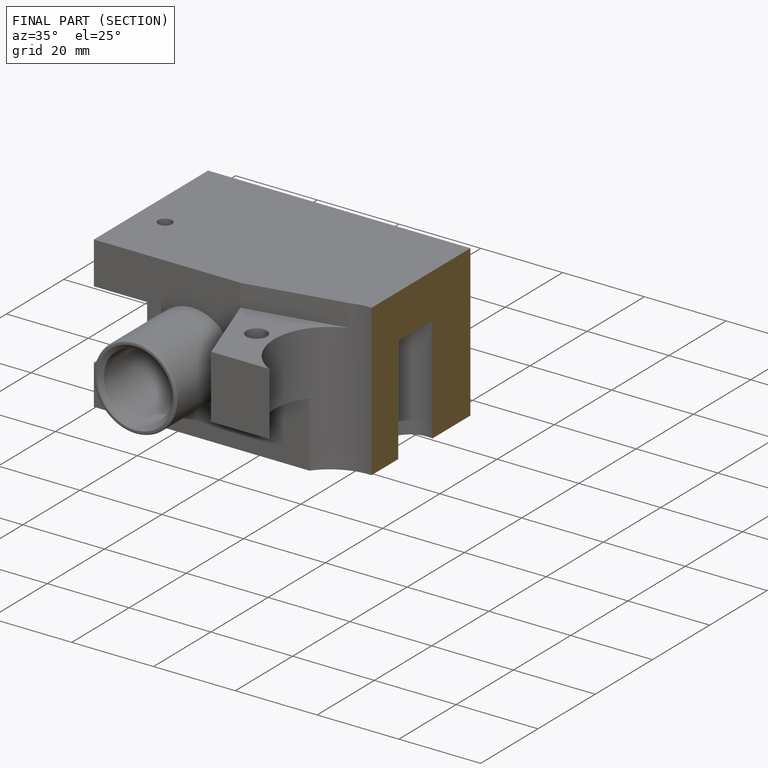
[diagram: finished part — half-section view (interior)]
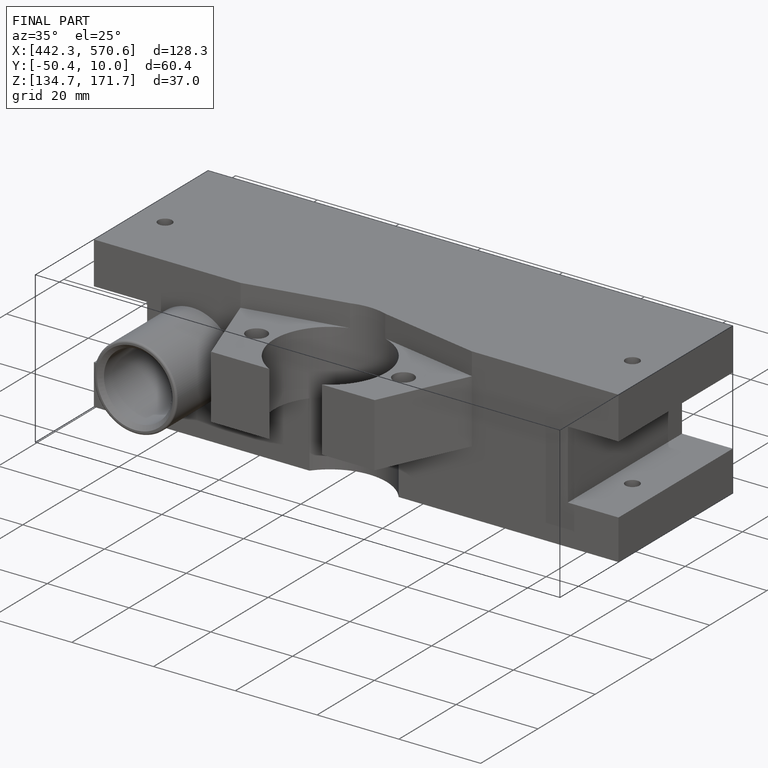
[diagram: finished part — iso view with bounding-box wireframe]
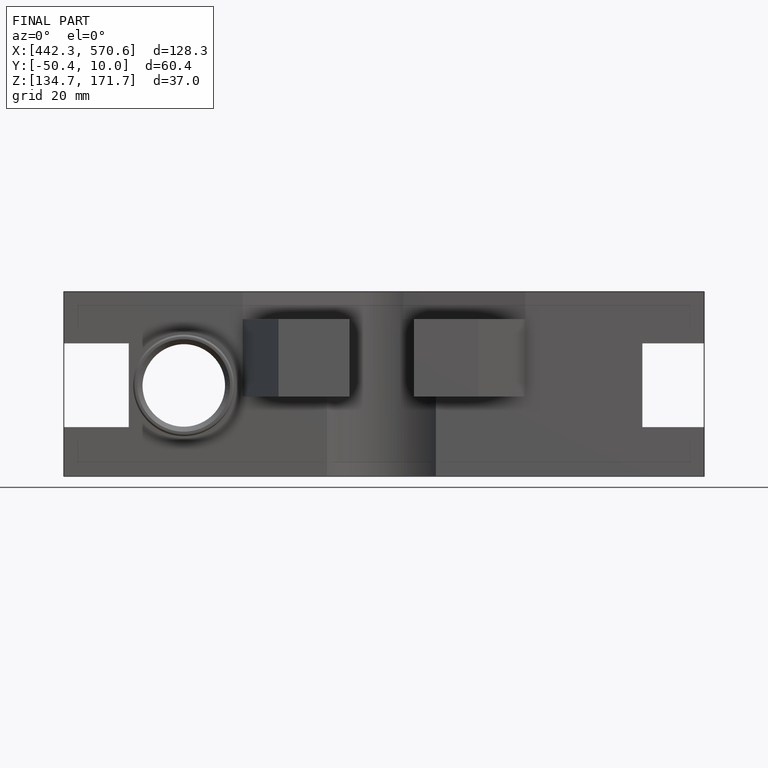
[diagram: finished part — front view with bounding-box wireframe]
